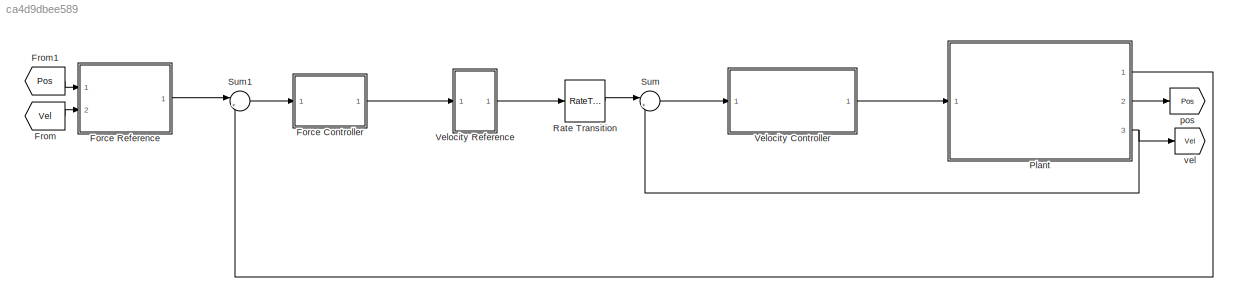
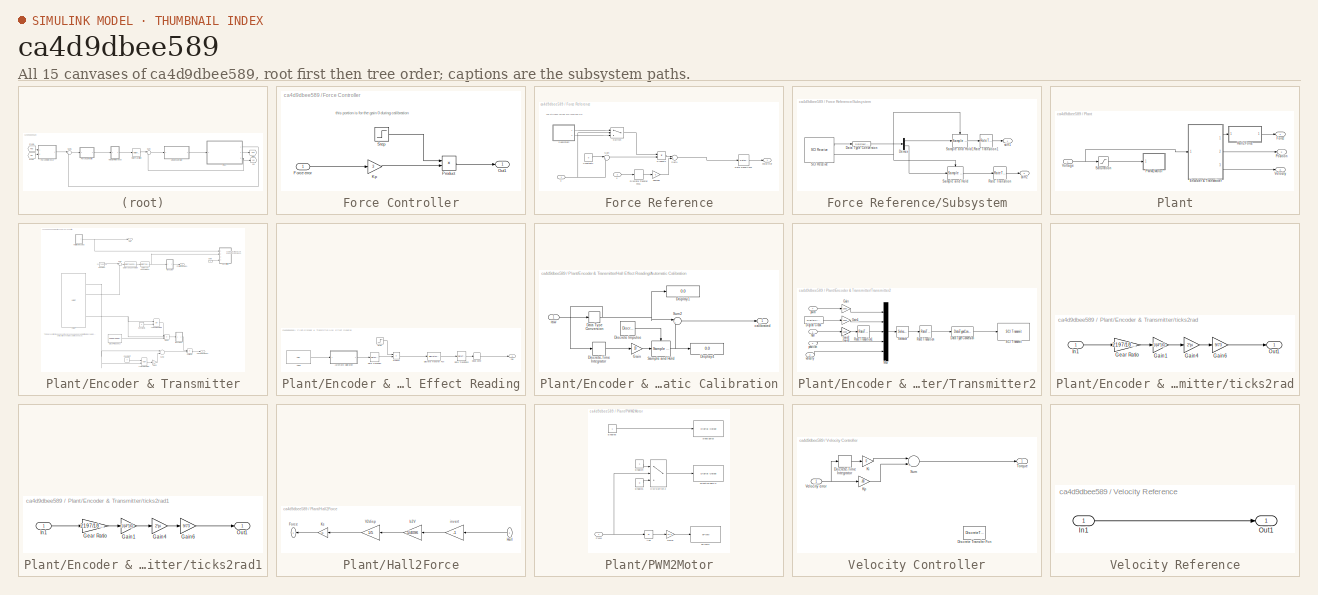
[diagram: thumbnail index - all 15 canvases of the model, root first then tree order]
MODEL slx_ca4d9dbee589
KIND model
CONFIG AbsTol = auto
CONFIG FixedStep = auto
CONFIG MaxStep = auto
CONFIG MinStep = auto
CONFIG RelTol = 1e-3
CONFIG SampleTimeConstraint = Unconstrained
CONFIG Solver = FixedStepDiscrete
CONFIG SolverMode = Auto
CONFIG SolverName = FixedStepDiscrete
CONFIG StartTime = 0.0
CONFIG StopTime = inf
BLOCK [SubSystem] Force Controller
  Ports = [1, 1]
  RequestExecContextInheritance = off
  Variant = off
BLOCK [Inport] Force Controller/Force error
  IconDisplay = Port number
BLOCK [Gain] Force Controller/Kp
  Gain = 3
  OutDataTypeStr = Inherit: Inherit via internal rule
  ParamDataTypeStr = Inherit: Inherit via internal rule
  SaturateOnIntegerOverflow = off
BLOCK [Outport] Force Controller/Out1
  IconDisplay = Port number
BLOCK [Product] Force Controller/Product
  InputSameDT = off
  OutDataTypeStr = Inherit: Inherit via internal rule
  Ports = [2, 1]
  RndMeth = Floor
  SaturateOnIntegerOverflow = off
BLOCK [Step] Force Controller/Step
  Time = 0.2
BLOCK [SubSystem] Force Reference
  Ports = [2, 1]
  RequestExecContextInheritance = off
  Variant = off
BLOCK [Constant] Force Reference/Constant1
  Value = 0
BLOCK [DiscreteTransferFcn] Force Reference/Discrete Transfer Fcn1
  Denominator = [1 -0.995]
  InputPortMap = u0
  Numerator = [0.004988]
  Ports = [1, 1]
BLOCK [Outport] Force Reference/Force Ref
  IconDisplay = Port number
BLOCK [Product] Force Reference/Product1
  InputSameDT = off
  OutDataTypeStr = Inherit: Inherit via internal rule
  Ports = [2, 1]
  RndMeth = Floor
  SaturateOnIntegerOverflow = off
BLOCK [RateTransition] Force Reference/Rate Transition1
  OutPortSampleTime = 0.001
BLOCK [SubSystem] Force Reference/Subsystem
  Ports = [0, 2]
  RequestExecContextInheritance = off
  Variant = off
BLOCK [DataTypeConversion] Force Reference/Subsystem/Data Type Conversion
  OutDataTypeStr = double
  RndMeth = Floor
  SaturateOnIntegerOverflow = off
BLOCK [Demux] Force Reference/Subsystem/Demux
  DisplayOption = bar
  Outputs = 2
  Ports = [1, 2]
BLOCK [RateTransition] Force Reference/Subsystem/Rate Transition
BLOCK [RateTransition] Force Reference/Subsystem/Rate Transition1
BLOCK [Reference] Force Reference/Subsystem/SCI Receive  REF=c280xlib/SCI Receive
  Ports = [0, 2]
  SourceBlock = c280xlib/SCI Receive
  SourceType = C28x SCI Receive
BLOCK [Reference] Force Reference/Subsystem/Sample and Hold  REF=dspsigops/Sample
and Hold
  Ports = [1, 1, 0, 1]
  SourceBlock = dspsigops/Sample\nand Hold
  SourceType = Sample and Hold
BLOCK [Reference] Force Reference/Subsystem/Sample and Hold1  REF=dspsigops/Sample
and Hold
  Ports = [1, 1, 0, 1]
  SourceBlock = dspsigops/Sample\nand Hold
  SourceType = Sample and Hold
BLOCK [Outport] Force Reference/Subsystem/stiff1
  IconDisplay = Port number
BLOCK [Outport] Force Reference/Subsystem/stiff2
  IconDisplay = Port number
  Port = 2
BLOCK [Sum] Force Reference/Sum
  IconShape = round
  InputSameDT = off
  Inputs = |+-
  OutDataTypeStr = Inherit: Inherit via internal rule
  Ports = [2, 1]
  SaturateOnIntegerOverflow = off
BLOCK [Sum] Force Reference/Sum1
  InputSameDT = off
  Inputs = |+-
  OutDataTypeStr = Inherit: Inherit via internal rule
  Ports = [2, 1]
  SaturateOnIntegerOverflow = off
BLOCK [Switch] Force Reference/Switch
  Criteria = u2 > Threshold
  InputSameDT = off
  SaturateOnIntegerOverflow = off
BLOCK [Gain] Force Reference/damper
  Gain = 0
  OutDataTypeStr = Inherit: Inherit via internal rule
  ParamDataTypeStr = Inherit: Inherit via internal rule
  SaturateOnIntegerOverflow = off
BLOCK [Inport] Force Reference/v 
  IconDisplay = Port number
  Port = 2
BLOCK [Inport] Force Reference/x
  IconDisplay = Port number
BLOCK [From] From
  GotoTag = Vel
BLOCK [From] From1
  GotoTag = Pos
BLOCK [SubSystem] Plant
  Ports = [1, 3]
  RequestExecContextInheritance = off
  Variant = off
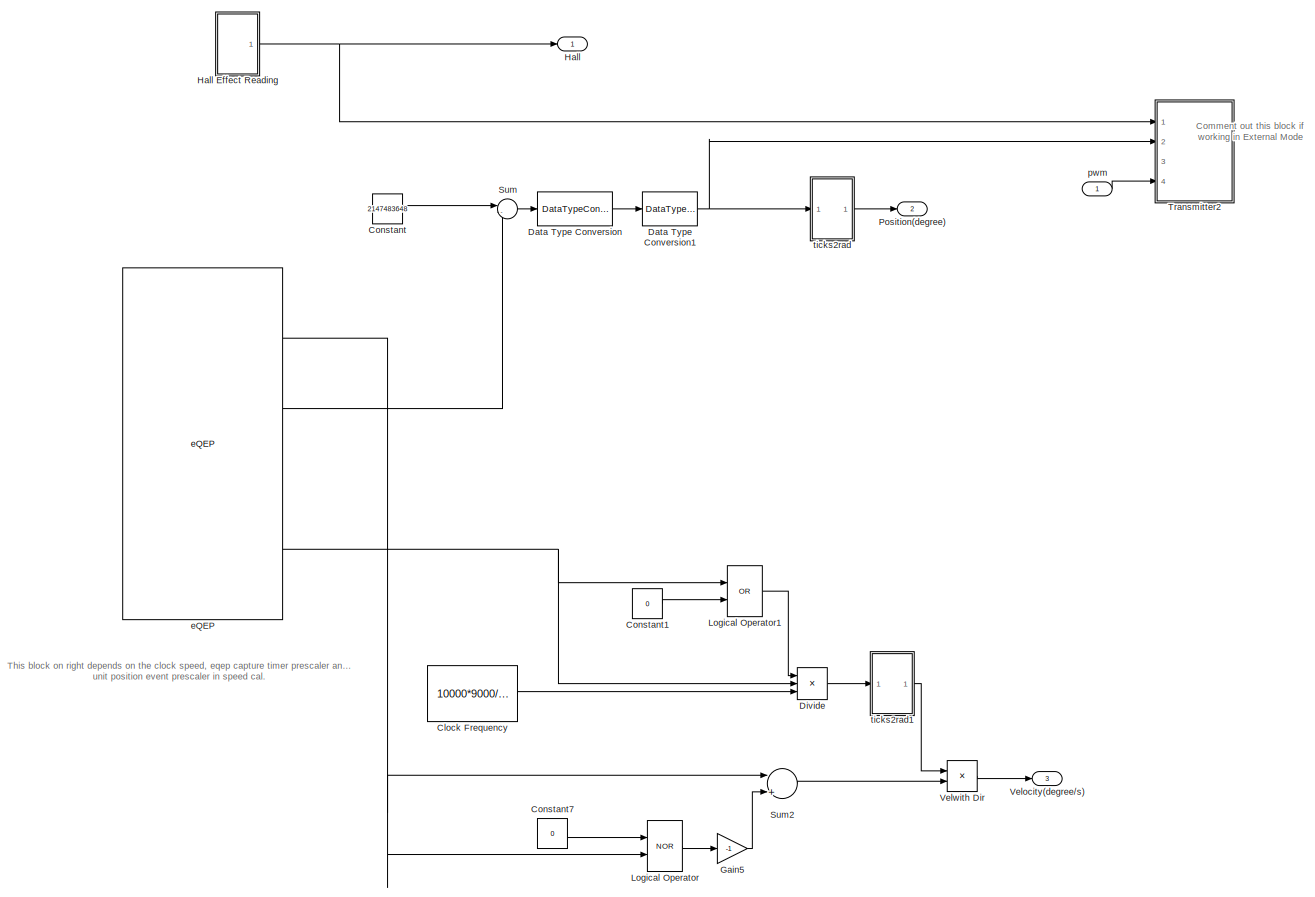
[diagram: Plant/Encoder & Transmitter - part 1/1, most of the canvas]
BLOCK [SubSystem] Plant/Encoder & Transmitter
  Ports = [1, 3]
  RequestExecContextInheritance = off
  Variant = off
BLOCK [Constant] Plant/Encoder & Transmitter/Clock Frequency
  Value = 10000*9000/32
BLOCK [Constant] Plant/Encoder & Transmitter/Constant
  OutDataTypeStr = uint32
  Value = 2147483648
BLOCK [Constant] Plant/Encoder & Transmitter/Constant1
  Value = 0
BLOCK [Constant] Plant/Encoder & Transmitter/Constant7
  Value = 0
BLOCK [DataTypeConversion] Plant/Encoder & Transmitter/Data Type Conversion
  OutDataTypeStr = int32
  RndMeth = Floor
  SaturateOnIntegerOverflow = off
BLOCK [DataTypeConversion] Plant/Encoder & Transmitter/Data Type Conversion1
  OutDataTypeStr = double
  RndMeth = Floor
  SaturateOnIntegerOverflow = off
BLOCK [Product] Plant/Encoder & Transmitter/Divide
  InputSameDT = off
  Inputs = */*
  OutDataTypeStr = Inherit: Inherit via internal rule
  Ports = [3, 1]
  RndMeth = Floor
  SaturateOnIntegerOverflow = off
BLOCK [Gain] Plant/Encoder & Transmitter/Gain5
  Gain = -1
  OutDataTypeStr = Inherit: Inherit via internal rule
  ParamDataTypeStr = Inherit: Inherit via internal rule
  SaturateOnIntegerOverflow = off
BLOCK [Outport] Plant/Encoder & Transmitter/Hall 
  IconDisplay = Port number
BLOCK [SubSystem] Plant/Encoder & Transmitter/Hall Effect Reading
  Ports = [0, 1]
  RequestExecContextInheritance = off
  Variant = off
BLOCK [Reference] Plant/Encoder & Transmitter/Hall Effect Reading/ADC2  REF=c2802xlib/ADC
  Ports = [0, 1]
  SourceBlock = c2802xlib/ADC
  SourceType = C2802x/03x/05x/06x/M3x ADC
  UserDataPersistent = on
BLOCK [SubSystem] Plant/Encoder & Transmitter/Hall Effect Reading/Automatic Calibration
  Ports = [1, 1]
  RequestExecContextInheritance = off
  Variant = off
BLOCK [DataTypeConversion] Plant/Encoder & Transmitter/Hall Effect Reading/Automatic Calibration/Data Type Conversion
  OutDataTypeStr = double
  RndMeth = Floor
  SaturateOnIntegerOverflow = off
BLOCK [Reference] Plant/Encoder & Transmitter/Hall Effect Reading/Automatic Calibration/Discrete Impulse  REF=dspsrcs4/Discrete 
Impulse
  Ports = [0, 1]
  SourceBlock = dspsrcs4/Discrete \nImpulse
  SourceType = Discrete Impulse
BLOCK [DiscreteIntegrator] Plant/Encoder & Transmitter/Hall Effect Reading/Automatic Calibration/Discrete-Time Integrator
  ICPrevOutput = DiscIntNeverNeededParam
  ICPrevScaledInput = DiscIntNeverNeededParam
  InitialConditionSetting = State (most efficient)
  Ports = [1, 1]
  SampleTime = 0.0001
BLOCK [Display] Plant/Encoder & Transmitter/Hall Effect Reading/Automatic Calibration/Display1
  Decimation = 1
  Ports = [1]
BLOCK [Display] Plant/Encoder & Transmitter/Hall Effect Reading/Automatic Calibration/Display4
  Decimation = 1
  Ports = [1]
BLOCK [Gain] Plant/Encoder & Transmitter/Hall Effect Reading/Automatic Calibration/Gain
  Gain = 10
  OutDataTypeStr = Inherit: Inherit via internal rule
  ParamDataTypeStr = Inherit: Inherit via internal rule
  SaturateOnIntegerOverflow = off
BLOCK [Reference] Plant/Encoder & Transmitter/Hall Effect Reading/Automatic Calibration/Sample and Hold  REF=dspsigops/Sample
and Hold
  Ports = [1, 1, 0, 1]
  SourceBlock = dspsigops/Sample\nand Hold
  SourceType = Sample and Hold
BLOCK [Sum] Plant/Encoder & Transmitter/Hall Effect Reading/Automatic Calibration/Sum2
  IconShape = round
  InputSameDT = off
  Inputs = |+-
  OutDataTypeStr = Inherit: Inherit via internal rule
  Ports = [2, 1]
  SaturateOnIntegerOverflow = off
BLOCK [Outport] Plant/Encoder & Transmitter/Hall Effect Reading/Automatic Calibration/calibrated
  IconDisplay = Port number
BLOCK [Inport] Plant/Encoder & Transmitter/Hall Effect Reading/Automatic Calibration/raw
  IconDisplay = Port number
BLOCK [DeadZone] Plant/Encoder & Transmitter/Hall Effect Reading/Dead Zone
  LowerValue = -2
  UpperValue = 2
BLOCK [DiscreteTransferFcn] Plant/Encoder & Transmitter/Hall Effect Reading/Discrete Transfer Fcn
  Denominator = [1 -0.997]
  InputPortMap = u0
  Numerator = [0.002996]
  Ports = [1, 1]
BLOCK [Product] Plant/Encoder & Transmitter/Hall Effect Reading/Product
  InputSameDT = off
  OutDataTypeStr = Inherit: Inherit via internal rule
  Ports = [2, 1]
  RndMeth = Floor
  SaturateOnIntegerOverflow = off
BLOCK [RateTransition] Plant/Encoder & Transmitter/Hall Effect Reading/Rate Transition
BLOCK [RateTransition] Plant/Encoder & Transmitter/Hall Effect Reading/Rate Transition2
  OutPortSampleTime = 0.001
BLOCK [Step] Plant/Encoder & Transmitter/Hall Effect Reading/Step
  Time = 0.11
BLOCK [Outport] Plant/Encoder & Transmitter/Hall Effect Reading/hall
  IconDisplay = Port number
BLOCK [Logic] Plant/Encoder & Transmitter/Logical Operator
  AllPortsSameDT = off
  Operator = NOR
  OutDataTypeStr = boolean
  Ports = [2, 1]
BLOCK [Logic] Plant/Encoder & Transmitter/Logical Operator1
  AllPortsSameDT = off
  Operator = OR
  OutDataTypeStr = boolean
  Ports = [2, 1]
BLOCK [Outport] Plant/Encoder & Transmitter/Position(degree) 
  IconDisplay = Port number
  Port = 2
BLOCK [Sum] Plant/Encoder & Transmitter/Sum
  IconShape = round
  InputSameDT = off
  Inputs = |-+
  OutDataTypeStr = Inherit: Inherit via internal rule
  Ports = [2, 1]
  SaturateOnIntegerOverflow = off
BLOCK [Sum] Plant/Encoder & Transmitter/Sum2
  InputSameDT = off
  Inputs = |++
  OutDataTypeStr = Inherit: Inherit via internal rule
  Ports = [2, 1]
  SaturateOnIntegerOverflow = off
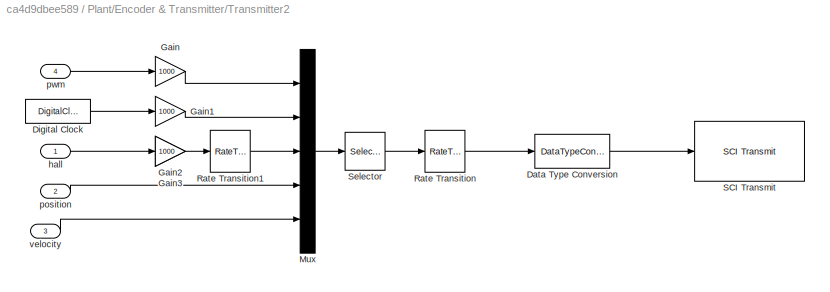
BLOCK [SubSystem] Plant/Encoder & Transmitter/Transmitter2
  Ports = [4]
  RequestExecContextInheritance = off
  Variant = off
BLOCK [DataTypeConversion] Plant/Encoder & Transmitter/Transmitter2/Data Type Conversion
  ConvertRealWorld = Stored Integer (SI)
  OutDataTypeStr = int32
  RndMeth = Floor
  SaturateOnIntegerOverflow = off
BLOCK [DigitalClock] Plant/Encoder & Transmitter/Transmitter2/Digital Clock
  SampleTime = 0.0001
BLOCK [Gain] Plant/Encoder & Transmitter/Transmitter2/Gain
  Gain = 1000
  OutDataTypeStr = Inherit: Inherit via internal rule
  ParamDataTypeStr = Inherit: Inherit via internal rule
  SaturateOnIntegerOverflow = off
BLOCK [Gain] Plant/Encoder & Transmitter/Transmitter2/Gain1
  Gain = 1000
  OutDataTypeStr = Inherit: Inherit via internal rule
  ParamDataTypeStr = Inherit: Inherit via internal rule
  SaturateOnIntegerOverflow = off
BLOCK [Gain] Plant/Encoder & Transmitter/Transmitter2/Gain2
  Gain = 1000
  OutDataTypeStr = Inherit: Inherit via internal rule
  ParamDataTypeStr = Inherit: Inherit via internal rule
  SaturateOnIntegerOverflow = off
BLOCK [Gain] Plant/Encoder & Transmitter/Transmitter2/Gain3
  Gain = 1000
  OutDataTypeStr = Inherit: Inherit via internal rule
  ParamDataTypeStr = Inherit: Inherit via internal rule
  SaturateOnIntegerOverflow = off
BLOCK [Mux] Plant/Encoder & Transmitter/Transmitter2/Mux
  DisplayOption = bar
  Inputs = 5
  Ports = [5, 1]
BLOCK [RateTransition] Plant/Encoder & Transmitter/Transmitter2/Rate Transition
  Integrity = off
  OutPortSampleTime = 0.02
BLOCK [RateTransition] Plant/Encoder & Transmitter/Transmitter2/Rate Transition1
  Integrity = off
  OutPortSampleTime = 0.0001
BLOCK [Reference] Plant/Encoder & Transmitter/Transmitter2/SCI Transmit  REF=c280xlib/SCI Transmit
  Ports = [1]
  SourceBlock = c280xlib/SCI Transmit
  SourceType = C28x SCI Transmit
BLOCK [Selector] Plant/Encoder & Transmitter/Transmitter2/Selector
  IndexOptions = Index vector (dialog)
  Indices = [3 4]
  InputPortWidth = 5
  OutputSizes = 1
  Ports = [1, 1]
BLOCK [Inport] Plant/Encoder & Transmitter/Transmitter2/hall
  IconDisplay = Port number
BLOCK [Inport] Plant/Encoder & Transmitter/Transmitter2/position
  IconDisplay = Port number
  Port = 2
BLOCK [Inport] Plant/Encoder & Transmitter/Transmitter2/pwm
  IconDisplay = Port number
  Port = 4
BLOCK [Inport] Plant/Encoder & Transmitter/Transmitter2/velocity
  IconDisplay = Port number
  Port = 3
BLOCK [Outport] Plant/Encoder & Transmitter/Velocity(degree//s)
  IconDisplay = Port number
  Port = 3
BLOCK [Product] Plant/Encoder & Transmitter/Velwith Dir 
  InputSameDT = off
  OutDataTypeStr = Inherit: Inherit via internal rule
  Ports = [2, 1]
  RndMeth = Floor
  SaturateOnIntegerOverflow = off
BLOCK [Reference] Plant/Encoder & Transmitter/eQEP  REF=c280xlib/eQEP
  Ports = [0, 4]
  SourceBlock = c280xlib/eQEP
  SourceType = C28x eQEP
BLOCK [Inport] Plant/Encoder & Transmitter/pwm
  IconDisplay = Port number
BLOCK [SubSystem] Plant/Encoder & Transmitter/ticks2rad
  Ports = [1, 1]
  RequestExecContextInheritance = off
  Variant = off
BLOCK [Gain] Plant/Encoder & Transmitter/ticks2rad/Gain1
  Gain = 1/(4*16)
  OutDataTypeStr = Inherit: Inherit via internal rule
  ParamDataTypeStr = Inherit: Inherit via internal rule
  SaturateOnIntegerOverflow = off
BLOCK [Gain] Plant/Encoder & Transmitter/ticks2rad/Gain4
  Gain = 2*pi
  OutDataTypeStr = Inherit: Inherit via internal rule
  ParamDataTypeStr = Inherit: Inherit via internal rule
  SaturateOnIntegerOverflow = off
BLOCK [Gain] Plant/Encoder & Transmitter/ticks2rad/Gain6
  Gain = 9/73
  OutDataTypeStr = Inherit: Inherit via internal rule
  ParamDataTypeStr = Inherit: Inherit via internal rule
  SaturateOnIntegerOverflow = off
BLOCK [Gain] Plant/Encoder & Transmitter/ticks2rad/Gear Ratio
  Gain = 2197/185193
  OutDataTypeStr = Inherit: Inherit via internal rule
  ParamDataTypeStr = Inherit: Inherit via internal rule
  SaturateOnIntegerOverflow = off
BLOCK [Inport] Plant/Encoder & Transmitter/ticks2rad/In1
  IconDisplay = Port number
BLOCK [Outport] Plant/Encoder & Transmitter/ticks2rad/Out1
  IconDisplay = Port number
BLOCK [SubSystem] Plant/Encoder & Transmitter/ticks2rad1
  Ports = [1, 1]
  RequestExecContextInheritance = off
  Variant = off
BLOCK [Gain] Plant/Encoder & Transmitter/ticks2rad1/Gain1
  Gain = 1/(4*16)
  OutDataTypeStr = Inherit: Inherit via internal rule
  ParamDataTypeStr = Inherit: Inherit via internal rule
  SaturateOnIntegerOverflow = off
BLOCK [Gain] Plant/Encoder & Transmitter/ticks2rad1/Gain4
  Gain = 2*pi
  OutDataTypeStr = Inherit: Inherit via internal rule
  ParamDataTypeStr = Inherit: Inherit via internal rule
  SaturateOnIntegerOverflow = off
BLOCK [Gain] Plant/Encoder & Transmitter/ticks2rad1/Gain6
  Gain = 9/73
  OutDataTypeStr = Inherit: Inherit via internal rule
  ParamDataTypeStr = Inherit: Inherit via internal rule
  SaturateOnIntegerOverflow = off
BLOCK [Gain] Plant/Encoder & Transmitter/ticks2rad1/Gear Ratio
  Gain = 2197/185193
  OutDataTypeStr = Inherit: Inherit via internal rule
  ParamDataTypeStr = Inherit: Inherit via internal rule
  SaturateOnIntegerOverflow = off
BLOCK [Inport] Plant/Encoder & Transmitter/ticks2rad1/In1
  IconDisplay = Port number
BLOCK [Outport] Plant/Encoder & Transmitter/ticks2rad1/Out1
  IconDisplay = Port number
BLOCK [Outport] Plant/Force
  IconDisplay = Port number
BLOCK [SubSystem] Plant/Hall2Force
  Ports = [1, 1]
  RequestExecContextInheritance = off
  Variant = off
BLOCK [Outport] Plant/Hall2Force/Force
  IconDisplay = Port number
BLOCK [Inport] Plant/Hall2Force/Hall
  IconDisplay = Port number
BLOCK [Gain] Plant/Hall2Force/Ks
  Gain = 85
  OutDataTypeStr = Inherit: Inherit via internal rule
  ParamDataTypeStr = Inherit: Inherit via internal rule
  SaturateOnIntegerOverflow = off
BLOCK [Gain] Plant/Hall2Force/V2disp
  Gain = 1/5
  OutDataTypeStr = Inherit: Inherit via internal rule
  ParamDataTypeStr = Inherit: Inherit via internal rule
  SaturateOnIntegerOverflow = off
BLOCK [Gain] Plant/Hall2Force/b2V
  Gain = 5/4096
  OutDataTypeStr = Inherit: Inherit via internal rule
  ParamDataTypeStr = Inherit: Inherit via internal rule
  SaturateOnIntegerOverflow = off
BLOCK [Gain] Plant/Hall2Force/invert
  Gain = -1
  OutDataTypeStr = Inherit: Inherit via internal rule
  ParamDataTypeStr = Inherit: Inherit via internal rule
  SaturateOnIntegerOverflow = off
BLOCK [SubSystem] Plant/PWM2Motor
  Ports = [1]
  RequestExecContextInheritance = off
  Variant = off
BLOCK [Abs] Plant/PWM2Motor/Abs
  SaturateOnIntegerOverflow = off
BLOCK [Switch] Plant/PWM2Motor/CW-Switch 2
  Criteria = u2 > Threshold
  InputSameDT = off
  SaturateOnIntegerOverflow = off
BLOCK [Constant] Plant/PWM2Motor/Enable1
  Value = 0
BLOCK [Constant] Plant/PWM2Motor/Enable4
BLOCK [Constant] Plant/PWM2Motor/Enable5
BLOCK [Gain] Plant/PWM2Motor/Gain2
  Gain = 22.5
  OutDataTypeStr = Inherit: Inherit via internal rule
  ParamDataTypeStr = Inherit: Inherit via internal rule
  SaturateOnIntegerOverflow = off
BLOCK [Inport] Plant/PWM2Motor/PWM
  IconDisplay = Port number
BLOCK [Reference] Plant/PWM2Motor/direction gpio 2  REF=c2806xlib/Digital Output
  Ports = [1]
  SourceBlock = c2806xlib/Digital Output
  SourceType = C2806x GPIO Digital Output
  UserDataPersistent = on
BLOCK [Reference] Plant/PWM2Motor/ePWM1  REF=c2802xlib/ePWM
  Ports = [1]
  SourceBlock = c2802xlib/ePWM
  SourceType = C2802x/03x/05x/06x/M3x ePWM
  UserDataPersistent = on
BLOCK [Reference] Plant/PWM2Motor/sleep gpio3  REF=c2806xlib/Digital Output
  Ports = [1]
  SourceBlock = c2806xlib/Digital Output
  SourceType = C2806x GPIO Digital Output
  UserDataPersistent = on
BLOCK [Outport] Plant/Position
  IconDisplay = Port number
  Port = 2
BLOCK [Saturate] Plant/Saturation
  InputPortMap = u0
  LowerLimit = -100
  Ports = [1, 1]
  UpperLimit = 100
BLOCK [Outport] Plant/Velocity
  IconDisplay = Port number
  Port = 3
BLOCK [Inport] Plant/Voltage
  IconDisplay = Port number
BLOCK [RateTransition] Rate Transition
BLOCK [Sum] Sum
  IconShape = round
  InputSameDT = off
  Inputs = |+-
  OutDataTypeStr = Inherit: Inherit via internal rule
  Ports = [2, 1]
  SaturateOnIntegerOverflow = off
BLOCK [Sum] Sum1
  IconShape = round
  InputSameDT = off
  Inputs = |+-
  OutDataTypeStr = Inherit: Inherit via internal rule
  Ports = [2, 1]
  SaturateOnIntegerOverflow = off
BLOCK [SubSystem] Velocity Controller
  Ports = [1, 1]
  RequestExecContextInheritance = off
  Variant = off
BLOCK [DiscreteTransferFcn] Velocity Controller/Discrete Transfer Fcn
  Denominator = [1 -0.995]
  InputPortMap = u0
  Numerator = [0.004988]
  Ports = [1, 1]
BLOCK [DiscreteIntegrator] Velocity Controller/Discrete-Time Integrator
  ICPrevOutput = DiscIntNeverNeededParam
  ICPrevScaledInput = DiscIntNeverNeededParam
  InitialConditionSetting = State (most efficient)
  IntegratorMethod = Integration: Backward Euler
  Ports = [1, 1]
  SampleTime = -1
BLOCK [Gain] Velocity Controller/Ki
  Gain = 0
  OutDataTypeStr = Inherit: Inherit via internal rule
  ParamDataTypeStr = Inherit: Inherit via internal rule
  SaturateOnIntegerOverflow = off
BLOCK [Gain] Velocity Controller/Kp
  Gain = -80
  OutDataTypeStr = Inherit: Inherit via internal rule
  ParamDataTypeStr = Inherit: Inherit via internal rule
  SaturateOnIntegerOverflow = off
BLOCK [Sum] Velocity Controller/Sum
  InputSameDT = off
  Inputs = |++
  OutDataTypeStr = Inherit: Inherit via internal rule
  Ports = [2, 1]
  SaturateOnIntegerOverflow = off
BLOCK [Outport] Velocity Controller/Torque
  IconDisplay = Port number
BLOCK [Inport] Velocity Controller/Velocity error 
  IconDisplay = Port number
BLOCK [SubSystem] Velocity Reference
  Ports = [1, 1]
  RequestExecContextInheritance = off
  Variant = off
BLOCK [Inport] Velocity Reference/In1
  IconDisplay = Port number
BLOCK [Outport] Velocity Reference/Out1
  IconDisplay = Port number
BLOCK [Goto] pos
  GotoTag = Pos
BLOCK [Goto] vel
  GotoTag = Vel
ANNOTATION Force Controller: this portion is for the gain 0 during calibration
ANNOTATION Force Reference: The stffness values are received via
ANNOTATION Plant/Encoder & Transmitter: Comment out this block if working in External Mode
ANNOTATION Plant/Encoder & Transmitter: This block on right depends on the clock speed, eqep capture timer prescaler and unit position event prescaler in speed cal.
LINE Force Controller/Force error:1 -> Force Controller/Kp:1
LINE Force Controller/Kp:1 -> Force Controller/Product:2
LINE Force Controller/Product:1 -> Force Controller/Out1:1
LINE Force Controller/Step:1 -> Force Controller/Product:1
LINE Force Controller:1 -> Velocity Reference:1
LINE Force Reference/Constant1:1 -> Force Reference/Sum:1
LINE Force Reference/Discrete Transfer Fcn1:1 -> Force Reference/damper:1
LINE Force Reference/Product1:1 -> Force Reference/Sum1:1
LINE Force Reference/Rate Transition1:1 -> Force Reference/Force Ref:1
LINE Force Reference/Subsystem/Data Type Conversion:1 -> Force Reference/Subsystem/Demux:1
LINE Force Reference/Subsystem/Demux:1 -> Force Reference/Subsystem/Sample and Hold1:1
LINE Force Reference/Subsystem/Demux:2 -> Force Reference/Subsystem/Sample and Hold:1
LINE Force Reference/Subsystem/Rate Transition1:1 -> Force Reference/Subsystem/stiff1:1
LINE Force Reference/Subsystem/Rate Transition:1 -> Force Reference/Subsystem/stiff2:1
LINE Force Reference/Subsystem/SCI Receive:1 -> Force Reference/Subsystem/Data Type Conversion:1
NET Force Reference/Subsystem/SCI Receive:2 -> Force Reference/Subsystem/Sample and Hold1:trigger, Force Reference/Subsystem/Sample and Hold:trigger
LINE Force Reference/Subsystem/Sample and Hold1:1 -> Force Reference/Subsystem/Rate Transition1:1
LINE Force Reference/Subsystem/Sample and Hold:1 -> Force Reference/Subsystem/Rate Transition:1
LINE Force Reference/Subsystem:1 -> Force Reference/Switch:1
LINE Force Reference/Subsystem:2 -> Force Reference/Switch:3
LINE Force Reference/Sum1:1 -> Force Reference/Rate Transition1:1
LINE Force Reference/Sum:1 -> Force Reference/Product1:2
LINE Force Reference/Switch:1 -> Force Reference/Product1:1
LINE Force Reference/damper:1 -> Force Reference/Sum1:2
LINE Force Reference/v :1 -> Force Reference/Discrete Transfer Fcn1:1
NET Force Reference/x:1 -> Force Reference/Sum:2, Force Reference/Switch:2
LINE Force Reference:1 -> Sum1:1
LINE From1:1 -> Force Reference:1
LINE From:1 -> Force Reference:2
LINE Plant/Encoder & Transmitter/Clock Frequency:1 -> Plant/Encoder & Transmitter/Divide:3
LINE Plant/Encoder & Transmitter/Constant1:1 -> Plant/Encoder & Transmitter/Logical Operator1:2
LINE Plant/Encoder & Transmitter/Constant7:1 -> Plant/Encoder & Transmitter/Logical Operator:1
LINE Plant/Encoder & Transmitter/Constant:1 -> Plant/Encoder & Transmitter/Sum:1
NET Plant/Encoder & Transmitter/Data Type Conversion1:1 -> Plant/Encoder & Transmitter/Transmitter2:2, Plant/Encoder & Transmitter/ticks2rad:1
LINE Plant/Encoder & Transmitter/Data Type Conversion:1 -> Plant/Encoder & Transmitter/Data Type Conversion1:1
LINE Plant/Encoder & Transmitter/Divide:1 -> Plant/Encoder & Transmitter/ticks2rad1:1
LINE Plant/Encoder & Transmitter/Gain5:1 -> Plant/Encoder & Transmitter/Sum2:2
LINE Plant/Encoder & Transmitter/Hall Effect Reading/ADC2:1 -> Plant/Encoder & Transmitter/Hall Effect Reading/Automatic Calibration:1
NET Plant/Encoder & Transmitter/Hall Effect Reading/Automatic Calibration/Data Type Conversion:1 -> Plant/Encoder & Transmitter/Hall Effect Reading/Automatic Calibration/Discrete-Time Integrator:1, Plant/Encoder & Transmitter/Hall Effect Reading/Automatic Calibration/Display1:1, Plant/Encoder & Transmitter/Hall Effect Reading/Automatic Calibration/Sum2:1
LINE Plant/Encoder & Transmitter/Hall Effect Reading/Automatic Calibration/Discrete Impulse:1 -> Plant/Encoder & Transmitter/Hall Effect Reading/Automatic Calibration/Sample and Hold:trigger
LINE Plant/Encoder & Transmitter/Hall Effect Reading/Automatic Calibration/Discrete-Time Integrator:1 -> Plant/Encoder & Transmitter/Hall Effect Reading/Automatic Calibration/Gain:1
LINE Plant/Encoder & Transmitter/Hall Effect Reading/Automatic Calibration/Gain:1 -> Plant/Encoder & Transmitter/Hall Effect Reading/Automatic Calibration/Sample and Hold:1
NET Plant/Encoder & Transmitter/Hall Effect Reading/Automatic Calibration/Sample and Hold:1 -> Plant/Encoder & Transmitter/Hall Effect Reading/Automatic Calibration/Display4:1, Plant/Encoder & Transmitter/Hall Effect Reading/Automatic Calibration/Sum2:2
LINE Plant/Encoder & Transmitter/Hall Effect Reading/Automatic Calibration/Sum2:1 -> Plant/Encoder & Transmitter/Hall Effect Reading/Automatic Calibration/calibrated:1
LINE Plant/Encoder & Transmitter/Hall Effect Reading/Automatic Calibration/raw:1 -> Plant/Encoder & Transmitter/Hall Effect Reading/Automatic Calibration/Data Type Conversion:1
LINE Plant/Encoder & Transmitter/Hall Effect Reading/Automatic Calibration:1 -> Plant/Encoder & Transmitter/Hall Effect Reading/Rate Transition:1
LINE Plant/Encoder & Transmitter/Hall Effect Reading/Dead Zone:1 -> Plant/Encoder & Transmitter/Hall Effect Reading/hall:1
LINE Plant/Encoder & Transmitter/Hall Effect Reading/Discrete Transfer Fcn:1 -> Plant/Encoder & Transmitter/Hall Effect Reading/Rate Transition2:1
LINE Plant/Encoder & Transmitter/Hall Effect Reading/Product:1 -> Plant/Encoder & Transmitter/Hall Effect Reading/Discrete Transfer Fcn:1
LINE Plant/Encoder & Transmitter/Hall Effect Reading/Rate Transition2:1 -> Plant/Encoder & Transmitter/Hall Effect Reading/Dead Zone:1
LINE Plant/Encoder & Transmitter/Hall Effect Reading/Rate Transition:1 -> Plant/Encoder & Transmitter/Hall Effect Reading/Product:2
LINE Plant/Encoder & Transmitter/Hall Effect Reading/Step:1 -> Plant/Encoder & Transmitter/Hall Effect Reading/Product:1
NET Plant/Encoder & Transmitter/Hall Effect Reading:1 -> Plant/Encoder & Transmitter/Hall :1, Plant/Encoder & Transmitter/Transmitter2:1
LINE Plant/Encoder & Transmitter/Logical Operator1:1 -> Plant/Encoder & Transmitter/Divide:1
LINE Plant/Encoder & Transmitter/Logical Operator:1 -> Plant/Encoder & Transmitter/Gain5:1
LINE Plant/Encoder & Transmitter/Sum2:1 -> Plant/Encoder & Transmitter/Velwith Dir :2
LINE Plant/Encoder & Transmitter/Sum:1 -> Plant/Encoder & Transmitter/Data Type Conversion:1
LINE Plant/Encoder & Transmitter/Transmitter2/Data Type Conversion:1 -> Plant/Encoder & Transmitter/Transmitter2/SCI Transmit:1
LINE Plant/Encoder & Transmitter/Transmitter2/Digital Clock:1 -> Plant/Encoder & Transmitter/Transmitter2/Gain1:1
LINE Plant/Encoder & Transmitter/Transmitter2/Gain1:1 -> Plant/Encoder & Transmitter/Transmitter2/Mux:2
LINE Plant/Encoder & Transmitter/Transmitter2/Gain2:1 -> Plant/Encoder & Transmitter/Transmitter2/Rate Transition1:1
LINE Plant/Encoder & Transmitter/Transmitter2/Gain:1 -> Plant/Encoder & Transmitter/Transmitter2/Mux:1
LINE Plant/Encoder & Transmitter/Transmitter2/Mux:1 -> Plant/Encoder & Transmitter/Transmitter2/Selector:1
LINE Plant/Encoder & Transmitter/Transmitter2/Rate Transition1:1 -> Plant/Encoder & Transmitter/Transmitter2/Mux:3
LINE Plant/Encoder & Transmitter/Transmitter2/Rate Transition:1 -> Plant/Encoder & Transmitter/Transmitter2/Data Type Conversion:1
LINE Plant/Encoder & Transmitter/Transmitter2/Selector:1 -> Plant/Encoder & Transmitter/Transmitter2/Rate Transition:1
LINE Plant/Encoder & Transmitter/Transmitter2/hall:1 -> Plant/Encoder & Transmitter/Transmitter2/Gain2:1
LINE Plant/Encoder & Transmitter/Transmitter2/position:1 -> Plant/Encoder & Transmitter/Transmitter2/Mux:4
LINE Plant/Encoder & Transmitter/Transmitter2/pwm:1 -> Plant/Encoder & Transmitter/Transmitter2/Gain:1
LINE Plant/Encoder & Transmitter/Transmitter2/velocity:1 -> Plant/Encoder & Transmitter/Transmitter2/Mux:5
LINE Plant/Encoder & Transmitter/Velwith Dir :1 -> Plant/Encoder & Transmitter/Velocity(degree//s):1
NET Plant/Encoder & Transmitter/eQEP:1 -> Plant/Encoder & Transmitter/Logical Operator:2, Plant/Encoder & Transmitter/Sum2:1
LINE Plant/Encoder & Transmitter/eQEP:2 -> Plant/Encoder & Transmitter/Sum:2
NET Plant/Encoder & Transmitter/eQEP:4 -> Plant/Encoder & Transmitter/Divide:2, Plant/Encoder & Transmitter/Logical Operator1:1
LINE Plant/Encoder & Transmitter/pwm:1 -> Plant/Encoder & Transmitter/Transmitter2:4
LINE Plant/Encoder & Transmitter/ticks2rad/Gain1:1 -> Plant/Encoder & Transmitter/ticks2rad/Gain4:1
LINE Plant/Encoder & Transmitter/ticks2rad/Gain4:1 -> Plant/Encoder & Transmitter/ticks2rad/Gain6:1
LINE Plant/Encoder & Transmitter/ticks2rad/Gain6:1 -> Plant/Encoder & Transmitter/ticks2rad/Out1:1
LINE Plant/Encoder & Transmitter/ticks2rad/Gear Ratio:1 -> Plant/Encoder & Transmitter/ticks2rad/Gain1:1
LINE Plant/Encoder & Transmitter/ticks2rad/In1:1 -> Plant/Encoder & Transmitter/ticks2rad/Gear Ratio:1
LINE Plant/Encoder & Transmitter/ticks2rad1/Gain1:1 -> Plant/Encoder & Transmitter/ticks2rad1/Gain4:1
LINE Plant/Encoder & Transmitter/ticks2rad1/Gain4:1 -> Plant/Encoder & Transmitter/ticks2rad1/Gain6:1
LINE Plant/Encoder & Transmitter/ticks2rad1/Gain6:1 -> Plant/Encoder & Transmitter/ticks2rad1/Out1:1
LINE Plant/Encoder & Transmitter/ticks2rad1/Gear Ratio:1 -> Plant/Encoder & Transmitter/ticks2rad1/Gain1:1
LINE Plant/Encoder & Transmitter/ticks2rad1/In1:1 -> Plant/Encoder & Transmitter/ticks2rad1/Gear Ratio:1
LINE Plant/Encoder & Transmitter/ticks2rad1:1 -> Plant/Encoder & Transmitter/Velwith Dir :1
LINE Plant/Encoder & Transmitter/ticks2rad:1 -> Plant/Encoder & Transmitter/Position(degree) :1
LINE Plant/Encoder & Transmitter:1 -> Plant/Hall2Force:1
LINE Plant/Encoder & Transmitter:2 -> Plant/Position:1
LINE Plant/Encoder & Transmitter:3 -> Plant/Velocity:1
LINE Plant/Hall2Force/Hall:1 -> Plant/Hall2Force/invert:1
LINE Plant/Hall2Force/Ks:1 -> Plant/Hall2Force/Force:1
LINE Plant/Hall2Force/V2disp:1 -> Plant/Hall2Force/Ks:1
LINE Plant/Hall2Force/b2V:1 -> Plant/Hall2Force/V2disp:1
LINE Plant/Hall2Force/invert:1 -> Plant/Hall2Force/b2V:1
LINE Plant/Hall2Force:1 -> Plant/Force:1
LINE Plant/PWM2Motor/Abs:1 -> Plant/PWM2Motor/Gain2:1
LINE Plant/PWM2Motor/CW-Switch 2:1 -> Plant/PWM2Motor/direction gpio 2:1
LINE Plant/PWM2Motor/Enable1:1 -> Plant/PWM2Motor/CW-Switch 2:3
LINE Plant/PWM2Motor/Enable4:1 -> Plant/PWM2Motor/CW-Switch 2:1
LINE Plant/PWM2Motor/Enable5:1 -> Plant/PWM2Motor/sleep gpio3:1
LINE Plant/PWM2Motor/Gain2:1 -> Plant/PWM2Motor/ePWM1:1
NET Plant/PWM2Motor/PWM:1 -> Plant/PWM2Motor/Abs:1, Plant/PWM2Motor/CW-Switch 2:2
LINE Plant/Saturation:1 -> Plant/PWM2Motor:1
NET Plant/Voltage:1 -> Plant/Encoder & Transmitter:1, Plant/Saturation:1
LINE Plant:1 -> Sum1:2
LINE Plant:2 -> pos:1
NET Plant:3 -> Sum:2, vel:1
LINE Rate Transition:1 -> Sum:1
LINE Sum1:1 -> Force Controller:1
LINE Sum:1 -> Velocity Controller:1
LINE Velocity Controller/Discrete-Time Integrator:1 -> Velocity Controller/Ki:1
LINE Velocity Controller/Ki:1 -> Velocity Controller/Sum:1
LINE Velocity Controller/Kp:1 -> Velocity Controller/Sum:2
LINE Velocity Controller/Sum:1 -> Velocity Controller/Torque:1
NET Velocity Controller/Velocity error :1 -> Velocity Controller/Discrete-Time Integrator:1, Velocity Controller/Kp:1
LINE Velocity Controller:1 -> Plant:1
LINE Velocity Reference/In1:1 -> Velocity Reference/Out1:1
LINE Velocity Reference:1 -> Rate Transition:1
note: NET lines group one-source signal fan-out (src -> all destinations, sorted); 1:1 wires keep LINE
